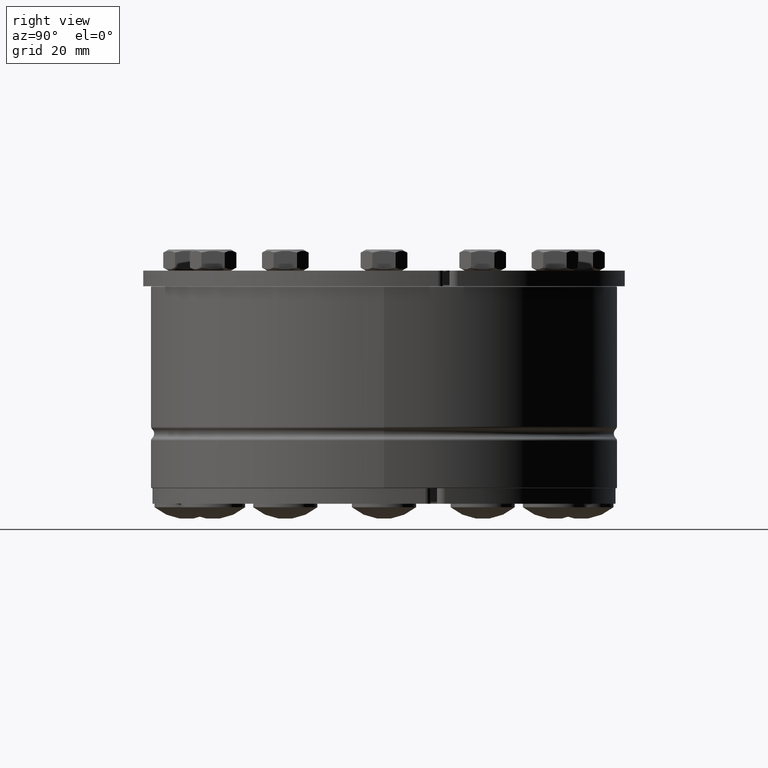
[diagram: clean part render]
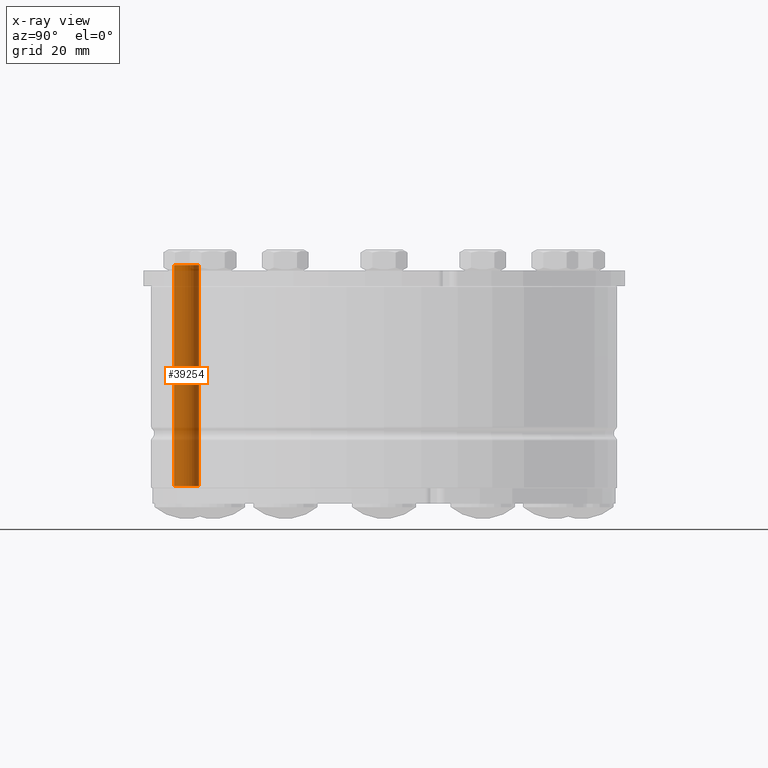
[diagram: x-ray — body ghosted, one internal face saturated and labeled with its STEP entity id]
A machine part, right view, then the same camera in x-ray: the body is ghosted and one INTERNAL B-rep face — a face not visible from any outside direction — is saturated and labeled: STEP entity #39254.
In plain terms, the highlighted cylindrical surface (bore or boss wall) has radius 4 mm, axis along (0, 0, 1).
Its self-contained STEP definition (entity closure, byte-faithful):
#39185=CARTESIAN_POINT('',(76.799999999999997,4.000000000000005,4.898425E-016));
#39186=VERTEX_POINT('',#39185);
#39187=CARTESIAN_POINT('',(76.799999999999997,9.492483E-032,0.0));
#39188=DIRECTION('',(1.0,0.0,0.0));
#39189=DIRECTION('',(0.0,-1.0,0.0));
#39190=AXIS2_PLACEMENT_3D('',#39187,#39188,#39189);
#39191=CIRCLE('',#39190,4.000000000000005);
#39192=EDGE_CURVE('',#39186,#39186,#39191,.T.);
#39208=CARTESIAN_POINT('',(69.0,8.586002E-032,0.0));
#39209=DIRECTION('',(1.0,1.162155E-033,0.0));
#39210=DIRECTION('',(0.0,1.0,0.0));
#39211=AXIS2_PLACEMENT_3D('',#39208,#39209,#39210);
#39212=CYLINDRICAL_SURFACE('',#39211,4.000000000000005);
#39213=CARTESIAN_POINT('',(5.600000000000001,-1.110223E-015,3.999999999999999));
#39214=VERTEX_POINT('',#39213);
#39215=CARTESIAN_POINT('',(5.600000000000001,-3.999999999999995,0.0));
#39216=VERTEX_POINT('',#39215);
#39217=CARTESIAN_POINT('',(5.599999999999996,1.217939E-032,0.0));
#39218=DIRECTION('',(1.0,0.0,0.0));
#39219=DIRECTION('',(0.0,1.0,0.0));
#39220=AXIS2_PLACEMENT_3D('',#39217,#39218,#39219);
#39221=CIRCLE('',#39220,4.000000000000005);
#39222=EDGE_CURVE('',#39214,#39216,#39221,.T.);
#39223=ORIENTED_EDGE('',*,*,#39222,.T.);
#39224=CARTESIAN_POINT('',(5.600000000000001,4.898587E-016,-3.999999999999999));
#39225=VERTEX_POINT('',#39224);
#39226=CARTESIAN_POINT('',(5.599999999999996,1.217939E-032,0.0));
#39227=DIRECTION('',(1.0,0.0,0.0));
#39228=DIRECTION('',(0.0,1.0,0.0));
#39229=AXIS2_PLACEMENT_3D('',#39226,#39227,#39228);
#39230=CIRCLE('',#39229,4.000000000000005);
#39231=EDGE_CURVE('',#39216,#39225,#39230,.T.);
#39232=ORIENTED_EDGE('',*,*,#39231,.T.);
#39233=CARTESIAN_POINT('',(5.600000000000001,4.0,0.0));
#39234=VERTEX_POINT('',#39233);
#39235=CARTESIAN_POINT('',(5.599999999999996,1.217939E-032,0.0));
#39236=DIRECTION('',(1.0,0.0,0.0));
#39237=DIRECTION('',(0.0,1.0,0.0));
#39238=AXIS2_PLACEMENT_3D('',#39235,#39236,#39237);
#39239=CIRCLE('',#39238,4.000000000000005);
#39240=EDGE_CURVE('',#39225,#39234,#39239,.T.);
#39241=ORIENTED_EDGE('',*,*,#39240,.T.);
#39242=CARTESIAN_POINT('',(5.599999999999996,1.217939E-032,0.0));
#39243=DIRECTION('',(1.0,0.0,0.0));
#39244=DIRECTION('',(0.0,1.0,0.0));
#39245=AXIS2_PLACEMENT_3D('',#39242,#39243,#39244);
#39246=CIRCLE('',#39245,4.000000000000005);
#39247=EDGE_CURVE('',#39234,#39214,#39246,.T.);
#39248=ORIENTED_EDGE('',*,*,#39247,.T.);
#39249=EDGE_LOOP('',(#39223,#39232,#39241,#39248));
#39250=FACE_OUTER_BOUND('',#39249,.T.);
#39251=ORIENTED_EDGE('',*,*,#39192,.F.);
#39252=EDGE_LOOP('',(#39251));
#39253=FACE_BOUND('',#39252,.T.);
#39254=ADVANCED_FACE('',(#39250,#39253),#39212,.T.);